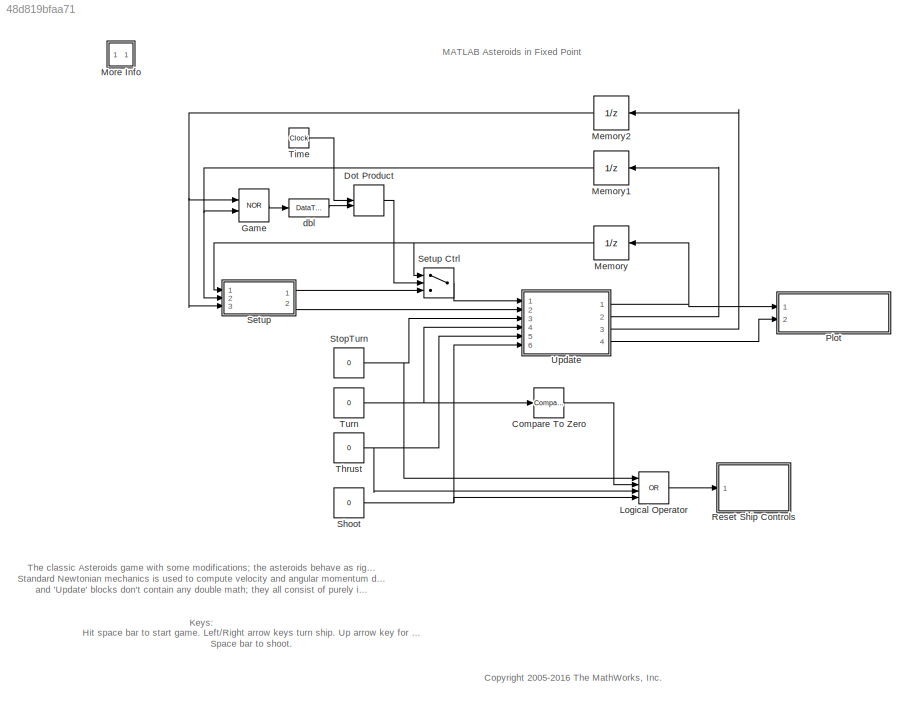
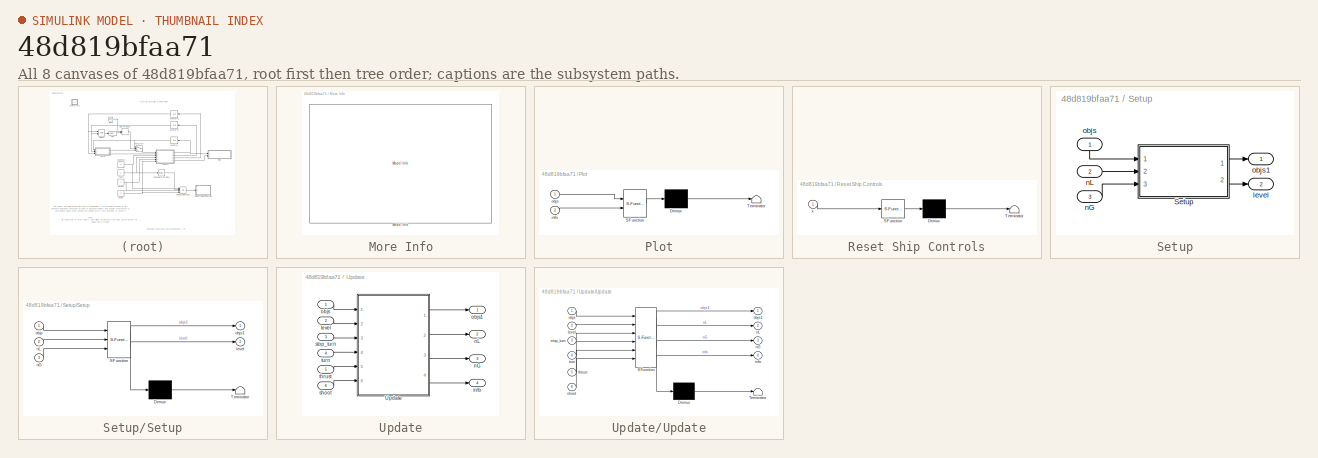
[diagram: thumbnail index - all 8 canvases of the model, root first then tree order]
MODEL slx_48d819bfaa71
KIND model
CONFIG AbsTol = auto
CONFIG FixedStep = 1
CONFIG MaxStep = auto
CONFIG MinStep = auto
CONFIG RelTol = 1e-3
CONFIG SampleTimeConstraint = Unconstrained
CONFIG Solver = FixedStepDiscrete
CONFIG SolverMode = Auto
CONFIG SolverName = FixedStepDiscrete
CONFIG StartTime = 0.0
CONFIG StopFcn = obj = findobj( 'Tag', 'asteroids_fig');\nif ~isempty(obj),\n   close(obj);\nend;
CONFIG StopTime = inf
BLOCK [Reference] Compare To Zero  REF=simulink/Logic and Bit
Operations/Compare
To Zero
  OutDataTypeStr = boolean
  Ports = [1, 1]
  SourceBlock = simulink/Logic and Bit\nOperations/Compare\nTo Zero
  SourceType = Compare To Zero
  ZeroCross = off
  relop = ~=
BLOCK [DotProduct] Dot Product
  OutDataTypeStr = Inherit: Inherit via internal rule
BLOCK [Logic] Game
  AllPortsSameDT = off
  Operator = NOR
  OutDataTypeStr = boolean
  Ports = [2, 1]
BLOCK [Logic] Logical Operator
  AllPortsSameDT = off
  Inputs = 4
  Operator = OR
  OutDataTypeStr = boolean
  Ports = [4, 1]
BLOCK [UnitDelay] Memory
  SampleTime = -1
BLOCK [UnitDelay] Memory1
  SampleTime = -1
BLOCK [UnitDelay] Memory2
  SampleTime = -1
BLOCK [SubSystem] More Info
  Ports = []
  RequestExecContextInheritance = off
  Variant = off
BLOCK [Reference] More Info/Model Info  REF=simulink/Model-Wide
Utilities/Model Info
  DisplayStringWithTags = Model Description:\n-------------------\n\n%<Description>
  Frame = on
  HorizontalTextAlignment = Left
  LeftAlignmentValue = 0.02
  MaskDisplayString = Model Description:\n-------------------\n\nMATLAB fixed point version of the classic Asteroids game.\n\nThe classic Asteroids game. Even though it is purely fictitious (and not even physically\ncorrect), it is nevertheless a complicated dynamic system including collisions,\nrotating polygons and gaming logic.\n\nThis version is using MATLAB Function block and fixed point to demonstrate that all th...<+906ch>
  Ports = []
  SourceBlock = simulink/Model-Wide\nUtilities/Model Info
  SourceType = CMBlock
BLOCK [SubSystem] Plot
  ErrorFcn = Stateflow.Translate.translate
  PermitHierarchicalResolution = ParametersOnly
  Ports = [2]
  RequestExecContextInheritance = off
  SFBlockType = MATLAB Function
  TreatAsAtomicUnit = on
  Variant = off
BLOCK [Demux] Plot/ Demux 
  Outputs = 1
  Ports = [1, 1]
BLOCK [S-Function] Plot/ SFunction 
  EnableBusSupport = off
  FunctionName = sf_sfun
  PortCounts = [2 1]
  Ports = [2, 1]
  SFunctionDeploymentMode = off
  Tag = Stateflow S-Function eml_asteroids_tmp 3
BLOCK [Terminator] Plot/ Terminator 
BLOCK [Inport] Plot/info
  IconDisplay = Port number
  Port = 2
BLOCK [Inport] Plot/objs
  IconDisplay = Port number
BLOCK [SubSystem] Reset Ship Controls
  ErrorFcn = Stateflow.Translate.translate
  PermitHierarchicalResolution = ParametersOnly
  Ports = [1]
  RequestExecContextInheritance = off
  SFBlockType = MATLAB Function
  TreatAsAtomicUnit = on
  Variant = off
BLOCK [Demux] Reset Ship Controls/ Demux 
  Outputs = 1
  Ports = [1, 1]
BLOCK [S-Function] Reset Ship Controls/ SFunction 
  EnableBusSupport = off
  FunctionName = sf_sfun
  PortCounts = [1 1]
  Ports = [1, 1]
  SFunctionDeploymentMode = off
  Tag = Stateflow S-Function eml_asteroids_tmp 4
BLOCK [Terminator] Reset Ship Controls/ Terminator 
BLOCK [Inport] Reset Ship Controls/x
  IconDisplay = Port number
BLOCK [SubSystem] Setup
  Ports = [3, 2]
  RequestExecContextInheritance = off
  Variant = off
BLOCK [Switch] Setup Ctrl
  Criteria = u2 > Threshold
  InputSameDT = off
  SaturateOnIntegerOverflow = off
  ZeroCross = off
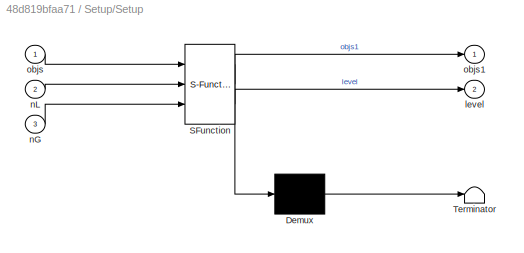
BLOCK [SubSystem] Setup/Setup
  ErrorFcn = Stateflow.Translate.translate
  PermitHierarchicalResolution = ParametersOnly
  Ports = [3, 2]
  RequestExecContextInheritance = off
  SFBlockType = MATLAB Function
  TreatAsAtomicUnit = on
  Variant = off
BLOCK [Demux] Setup/Setup/ Demux 
  Outputs = 1
  Ports = [1, 1]
BLOCK [S-Function] Setup/Setup/ SFunction 
  EnableBusSupport = off
  FunctionName = sf_sfun
  PortCounts = [3 3]
  Ports = [3, 3]
  SFunctionDeploymentMode = off
  Tag = Stateflow S-Function eml_asteroids_tmp 1
BLOCK [Terminator] Setup/Setup/ Terminator 
BLOCK [Outport] Setup/Setup/level
  IconDisplay = Port number
  Port = 2
BLOCK [Inport] Setup/Setup/nG
  IconDisplay = Port number
  Port = 3
BLOCK [Inport] Setup/Setup/nL
  IconDisplay = Port number
  Port = 2
BLOCK [Inport] Setup/Setup/objs
  IconDisplay = Port number
BLOCK [Outport] Setup/Setup/objs1
  IconDisplay = Port number
BLOCK [Outport] Setup/level
  IconDisplay = Port number
  Port = 2
BLOCK [Inport] Setup/nG
  IconDisplay = Port number
  Port = 3
BLOCK [Inport] Setup/nL
  IconDisplay = Port number
  Port = 2
BLOCK [Inport] Setup/objs
  IconDisplay = Port number
BLOCK [Outport] Setup/objs1
  IconDisplay = Port number
BLOCK [Constant] Shoot
  OutDataTypeStr = boolean
  Value = 0
BLOCK [Constant] StopTurn
  OutDataTypeStr = boolean
  Value = 0
BLOCK [Constant] Thrust
  OutDataTypeStr = boolean
  Value = 0
BLOCK [Clock] Time
BLOCK [Constant] Turn
  OutDataTypeStr = int32
  Value = 0
BLOCK [SubSystem] Update
  Ports = [6, 4]
  RequestExecContextInheritance = off
  Variant = off
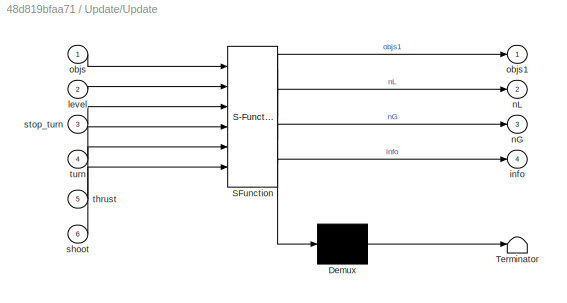
BLOCK [SubSystem] Update/Update
  ErrorFcn = Stateflow.Translate.translate
  PermitHierarchicalResolution = ParametersOnly
  Ports = [6, 4]
  RequestExecContextInheritance = off
  SFBlockType = MATLAB Function
  TreatAsAtomicUnit = on
  Variant = off
BLOCK [Demux] Update/Update/ Demux 
  Outputs = 1
  Ports = [1, 1]
BLOCK [S-Function] Update/Update/ SFunction 
  EnableBusSupport = off
  FunctionName = sf_sfun
  PortCounts = [6 5]
  Ports = [6, 5]
  SFunctionDeploymentMode = off
  Tag = Stateflow S-Function eml_asteroids_tmp 2
BLOCK [Terminator] Update/Update/ Terminator 
BLOCK [Outport] Update/Update/info
  IconDisplay = Port number
  Port = 4
BLOCK [Inport] Update/Update/level
  IconDisplay = Port number
  Port = 2
BLOCK [Outport] Update/Update/nG
  IconDisplay = Port number
  Port = 3
BLOCK [Outport] Update/Update/nL
  IconDisplay = Port number
  Port = 2
BLOCK [Inport] Update/Update/objs
  IconDisplay = Port number
BLOCK [Outport] Update/Update/objs1
  IconDisplay = Port number
BLOCK [Inport] Update/Update/shoot
  IconDisplay = Port number
  Port = 6
BLOCK [Inport] Update/Update/stop_turn
  IconDisplay = Port number
  Port = 3
BLOCK [Inport] Update/Update/thrust
  IconDisplay = Port number
  Port = 5
BLOCK [Inport] Update/Update/turn
  IconDisplay = Port number
  Port = 4
BLOCK [Outport] Update/info
  IconDisplay = Port number
  Port = 4
BLOCK [Inport] Update/level
  IconDisplay = Port number
  Port = 2
BLOCK [Outport] Update/nG
  IconDisplay = Port number
  Port = 3
BLOCK [Outport] Update/nL
  IconDisplay = Port number
  Port = 2
BLOCK [Inport] Update/objs
  IconDisplay = Port number
BLOCK [Outport] Update/objs1
  IconDisplay = Port number
BLOCK [Inport] Update/shoot
  IconDisplay = Port number
  Port = 6
BLOCK [Inport] Update/stop_turn
  IconDisplay = Port number
  Port = 3
BLOCK [Inport] Update/thrust
  IconDisplay = Port number
  Port = 5
BLOCK [Inport] Update/turn
  IconDisplay = Port number
  Port = 4
BLOCK [DataTypeConversion] dbl
  RndMeth = Floor
  SaturateOnIntegerOverflow = off
ANNOTATION (root): <copyright redacted>
ANNOTATION (root): Hit space bar to start game. Left/Right arrow keys turn ship. Up arrow key for thrust. Space bar to shoot.
ANNOTATION (root): Keys:
ANNOTATION (root): MATLAB Asteroids in Fixed Point
ANNOTATION (root): The classic Asteroids game with some modifications; the asteroids behave as rigid objects that can collide. Standard Newtonian mechanics is used to compute velocity and angular momentum during collisions. The 'Setup' and 'Update' blocks don't contain any double math; they all consist of purely integer or fixed point math.
LINE Compare To Zero:1 -> Logical Operator:2
LINE Dot Product:1 -> Setup Ctrl:2
LINE Game:1 -> dbl:1
LINE Logical Operator:1 -> Reset Ship Controls:1
NET Memory1:1 -> Game:2, Setup:2
NET Memory2:1 -> Game:1, Setup:3
NET Memory:1 -> Setup Ctrl:1, Setup:1
LINE Setup Ctrl:1 -> Update:1
LINE Setup/Setup:1 -> Setup/objs1:1
LINE Setup/Setup:2 -> Setup/level:1
LINE Setup/nG:1 -> Setup/Setup:3
LINE Setup/nL:1 -> Setup/Setup:2
LINE Setup/objs:1 -> Setup/Setup:1
LINE Setup:1 -> Setup Ctrl:3
LINE Setup:2 -> Update:2
NET Shoot:1 -> Logical Operator:4, Update:6
NET StopTurn:1 -> Logical Operator:1, Update:3
NET Thrust:1 -> Logical Operator:3, Update:5
LINE Time:1 -> Dot Product:1
NET Turn:1 -> Compare To Zero:1, Update:4
LINE Update/Update:1 -> Update/objs1:1
LINE Update/Update:2 -> Update/nL:1
LINE Update/Update:3 -> Update/nG:1
LINE Update/Update:4 -> Update/info:1
LINE Update/level:1 -> Update/Update:2
LINE Update/objs:1 -> Update/Update:1
LINE Update/shoot:1 -> Update/Update:6
LINE Update/stop_turn:1 -> Update/Update:3
LINE Update/thrust:1 -> Update/Update:5
LINE Update/turn:1 -> Update/Update:4
NET Update:1 -> Memory:1, Plot:1
LINE Update:2 -> Memory1:1
LINE Update:3 -> Memory2:1
LINE Update:4 -> Plot:2
LINE dbl:1 -> Dot Product:2
note: NET lines group one-source signal fan-out (src -> all destinations, sorted); 1:1 wires keep LINE
CHART Setup/Setup states=1 transitions=1
  STATE_LABEL 'eML_blk_kernel()'
  STATE_LABEL "SCRIPT:\nfunction [objs1,level] = setup(objs,nL,nG)\n\n% nL = nextLevel\n\nmy_fimath = fimath('MaxProductWordLength',32,'MaxSumWordLength',32,...\n                   'ProductFractionLength',12,'ProductMode','SpecifyPrecision',...\n                   'SumFractionLength',12,'SumMode','SpecifyPrecision');\nmy_fitype = numerictype(1,32,12);\n\npersistent level0;\npersistent objs0;\n\nmaxobjs = 64;\n\ninitial = false...<+3523ch>"
CHART Update/Update states=1 transitions=1
  STATE_LABEL 'eML_blk_kernel()'
  STATE_LABEL "SCRIPT:\nfunction [objs1,nL,nG,info] = update(objs, level, stop_turn, turn, thrust, shoot)\n\npersistent stop;\npersistent thrust_cnt;\npersistent turn_cnt;\npersistent turn_dir;\npersistent ship_cnt;\npersistent ship_destroyed_cnt;\npersistent level_complete_cnt;\npersistent score;\n\nmy_fimath = fimath('MaxProductWordLength',32,'MaxSumWordLength',32,...\n                   'ProductFractionLength',12,'Product...<+3608ch>"
CHART Plot states=1 transitions=1
  STATE_LABEL 'eML_blk_kernel()'
  STATE_LABEL "SCRIPT:\nfunction plot(objs,info)\n\ncoder.extrinsic('eml_asteroids_setup');\ncoder.extrinsic('set','gca','hold','text','sprintf');\ncoder.extrinsic('line','drawnow', 'num2str');\ncoder.extrinsic('eml_asteroids_handle_map');\n\npersistent canvas;\npersistent figs;\npersistent info_fig;\n\npersistent debris;\n\nlevel = info(1);\nships = info(2);\nscore = info(3);\n\nmaxobjs = 64;\nmaxdebris = 128;\n\nif isempty(figs)\n ...<+3608ch>"
CHART Reset Ship
Controls states=1 transitions=1
  STATE_LABEL 'eML_blk_kernel()'
  STATE_LABEL "SCRIPT:\nfunction reset(x)\n\nfeval('eml_asteroids_reset_controls',x);\n"
